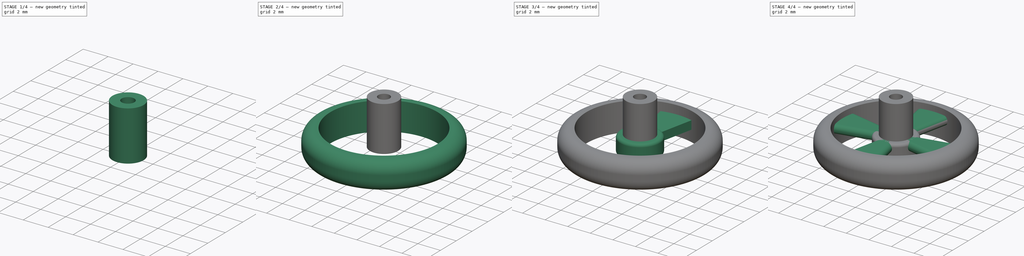
[diagram: build sequence overview — one tinted view per stage of 4, left to right]
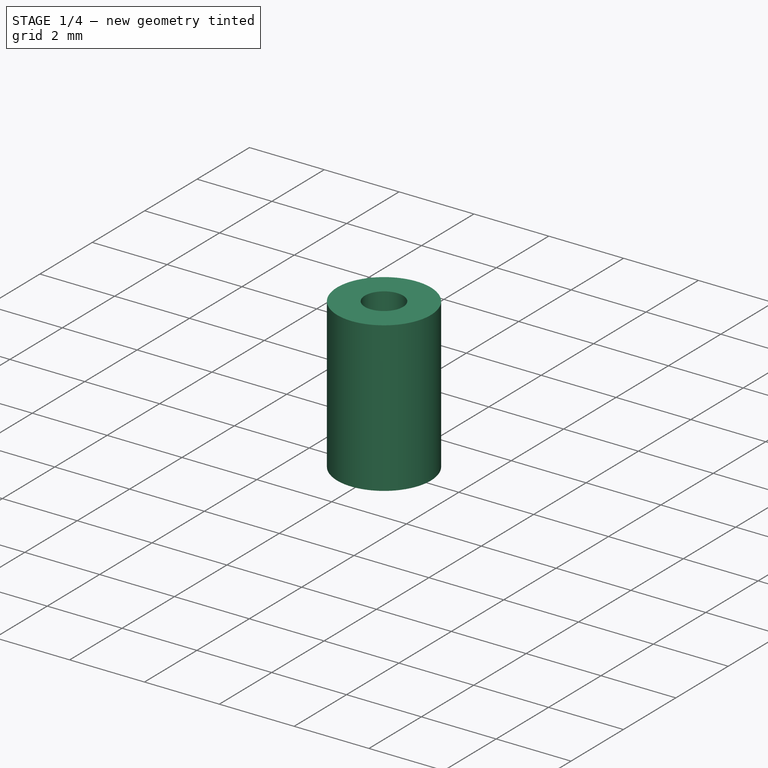
[diagram: stage 1 of 4 — iso view after this stage's code; geometry added in this stage tinted green]
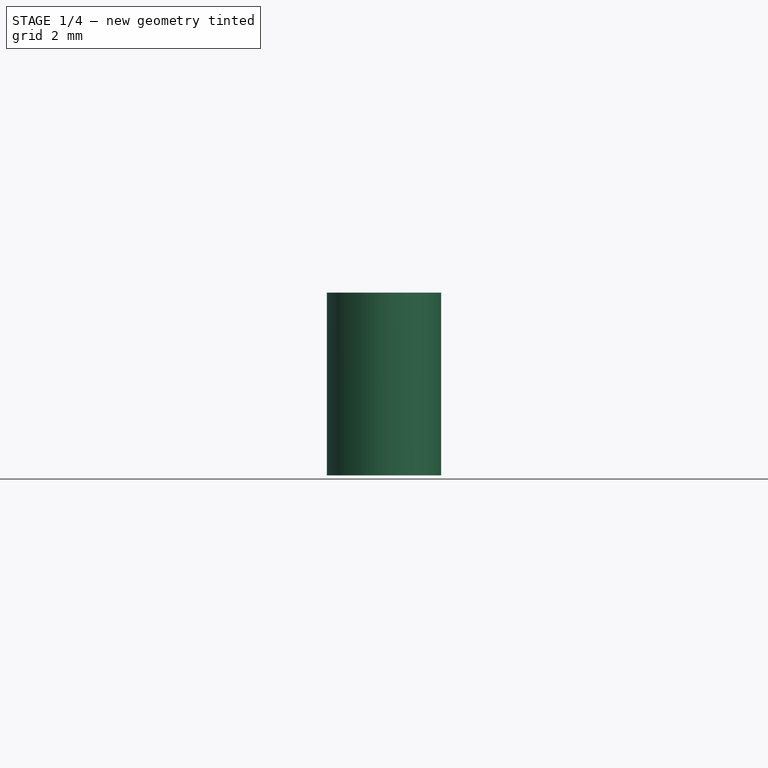
[diagram: stage 1 of 4 — front view after this stage's code; geometry added in this stage tinted green]
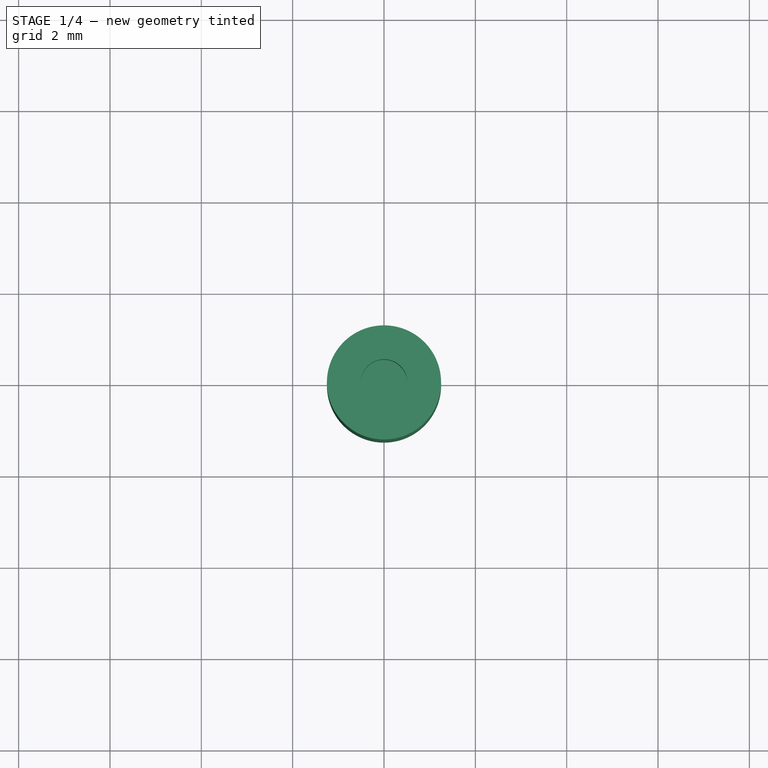
[diagram: stage 1 of 4 — top view after this stage's code; geometry added in this stage tinted green]
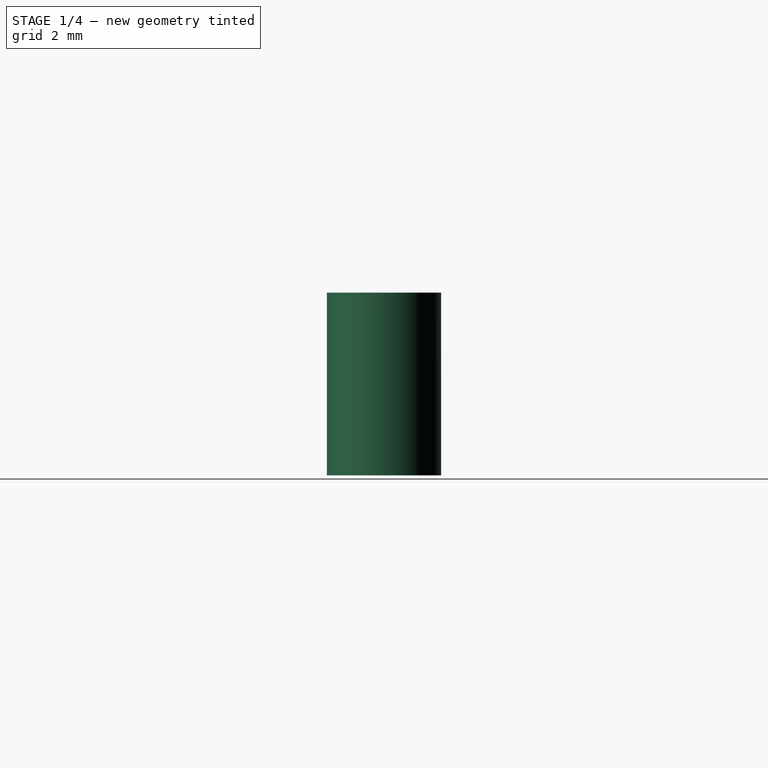
[diagram: stage 1 of 4 — right view after this stage's code; geometry added in this stage tinted green]
FCSTD DOCUMENT  (FreeCAD 0.19R24276 (Git))
Label: Wheel 2
License: All rights reserved
LicenseURL: http://en.wikipedia.org/wiki/All_rights_reserved
objects: Part::FeaturePython×4, Part::Fillet×2, Spreadsheet::Sheet×1, Sketcher::SketchObject×1, PartDesign::Pad×1, PartDesign::Fillet×1, PartDesign::Body×1, Part::Cylinder×1, Part::Cut×1
note: 13 computed .brp shape members not serialized (recipe doc carries the construction recipe); baked Part::Feature solids carry a one-line shape summary decoded from their .brp

FEATURE [Part::Cylinder] Cylinder
  Angle = 360
  AttacherType = Attacher::AttachEngine3D
  Height = 2
  Placement = pos=(0,0,1) rot=(0,0,1;0rad)
  Radius = 0.95
  expr: Radius = <<data>>.hub_outter_radius - 0.3mm
  expr: Height = <<data>>.hub_width - 2mm
FEATURE [Part::FeaturePython] Tube005  # WARN: FeaturePython — macro-defined, semantics opaque (R4)
  AttacherType = Attacher::AttachEngine3D
  Height = 4
  InnerRadius = 0.51
  OuterRadius = 1.25
  expr: Height = <<data>>.hub_width
  expr: InnerRadius = <<data>>.axle_hole_radius
  expr: OuterRadius = <<data>>.hub_outter_radius
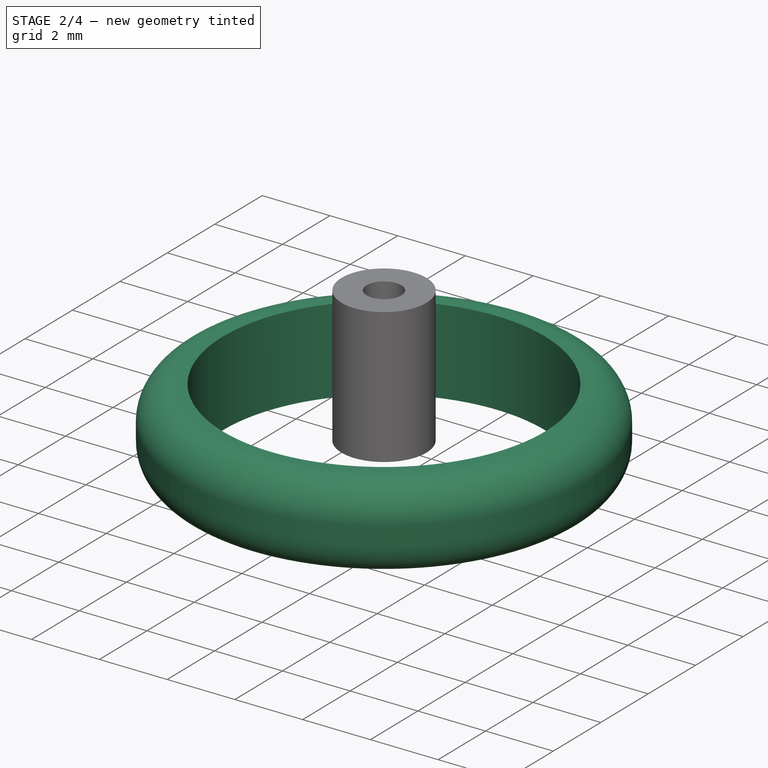
[diagram: stage 2 of 4 — iso view after this stage's code; geometry added in this stage tinted green]
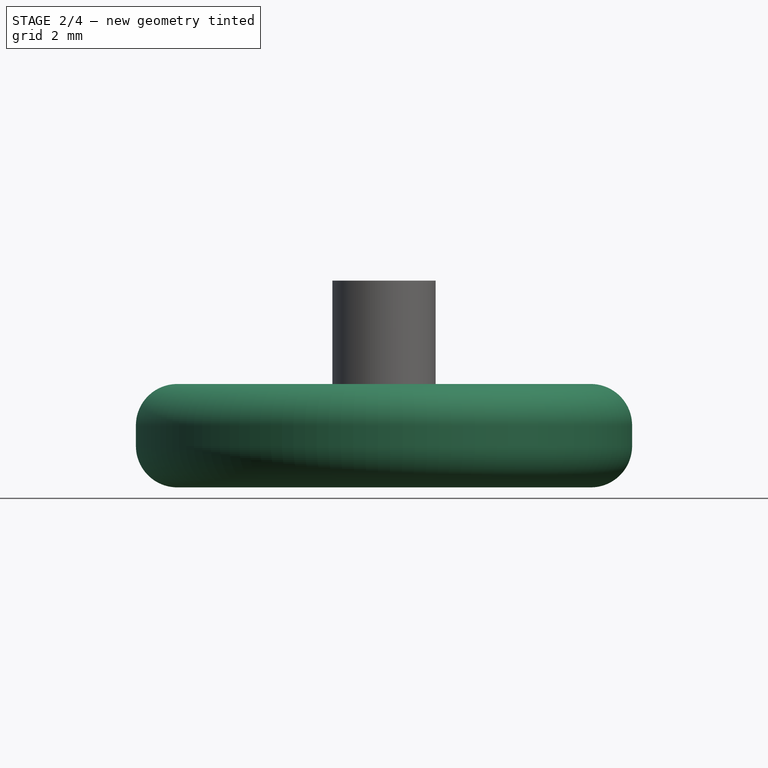
[diagram: stage 2 of 4 — front view after this stage's code; geometry added in this stage tinted green]
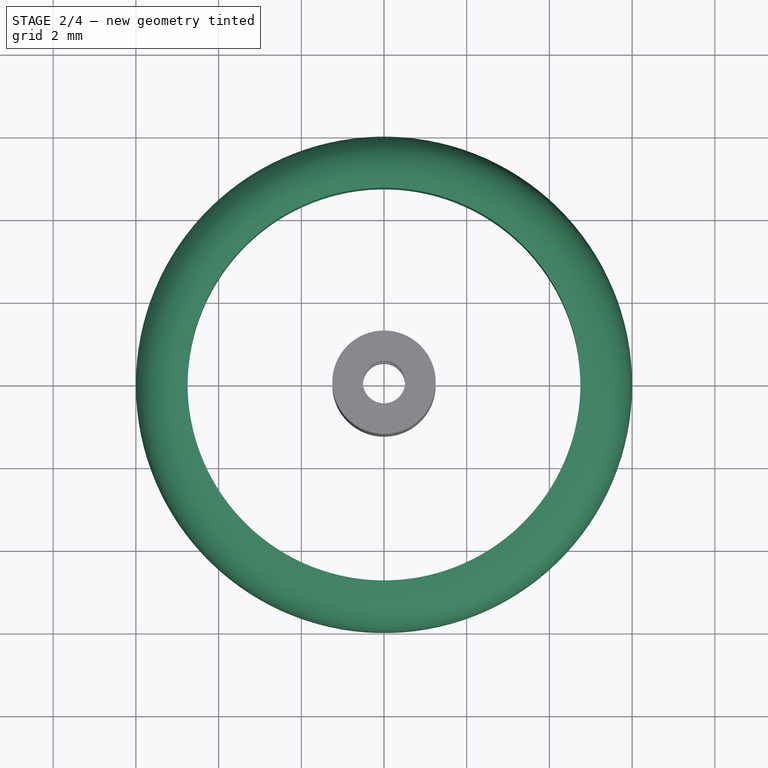
[diagram: stage 2 of 4 — top view after this stage's code; geometry added in this stage tinted green]
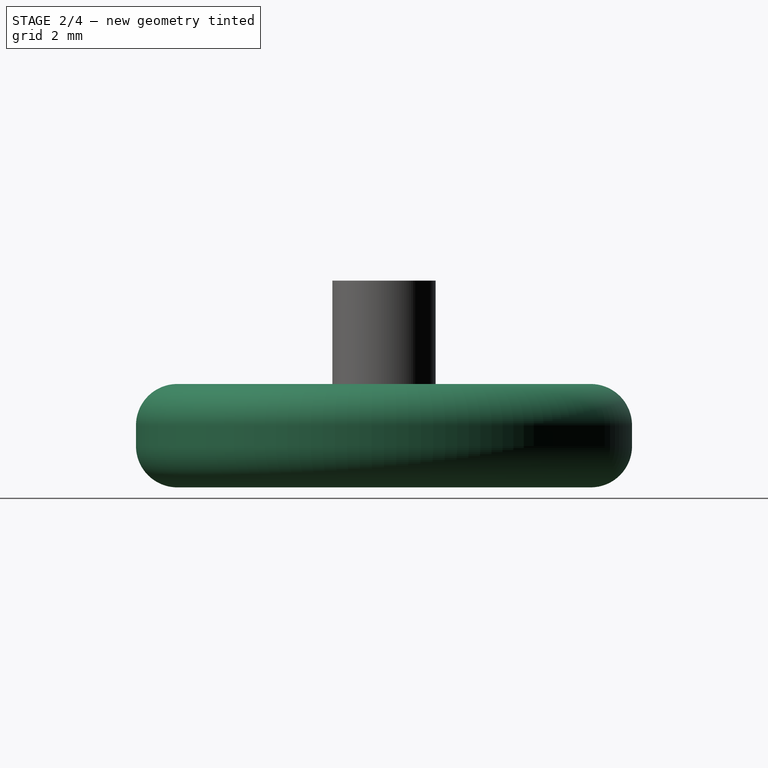
[diagram: stage 2 of 4 — right view after this stage's code; geometry added in this stage tinted green]
FEATURE [Part::FeaturePython] Tube  # WARN: FeaturePython — macro-defined, semantics opaque (R4)
  AttacherType = Attacher::AttachEngine3D
  Height = 2.5
  InnerRadius = 4.75
  OuterRadius = 6
  Placement = pos=(0,0,-1) rot=(0,0,1;0rad)
  expr: Height = <<data>>.wheel_width
  expr: InnerRadius = <<data>>.wheel_inner_radius
  expr: OuterRadius = <<data>>.wheel_outter_radius
FEATURE [Part::Fillet] Fillet005  label="Rim"
  Base = -> Tube
  Edges = 2 edges r=1: [Edge1,Edge3]
FEATURE [Part::Cut] Cut
  Base = -> Tube005
  Tool = -> Cylinder
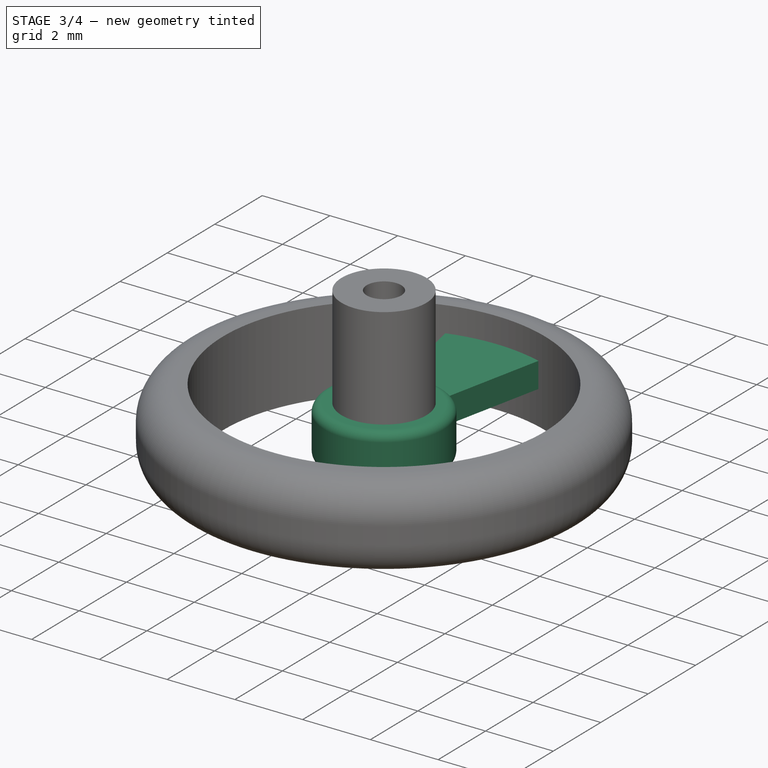
[diagram: stage 3 of 4 — iso view after this stage's code; geometry added in this stage tinted green]
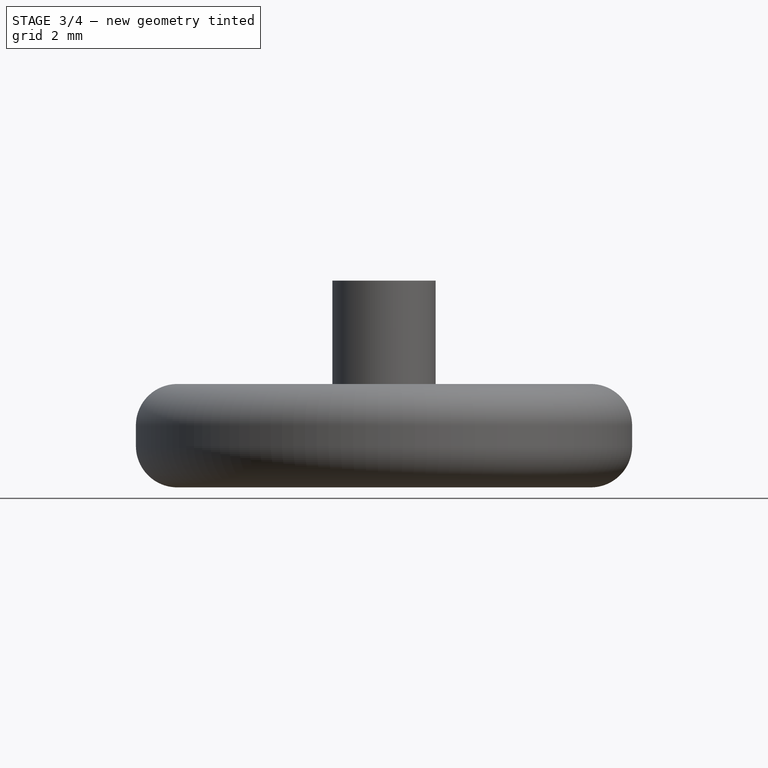
[diagram: stage 3 of 4 — front view after this stage's code; geometry added in this stage tinted green]
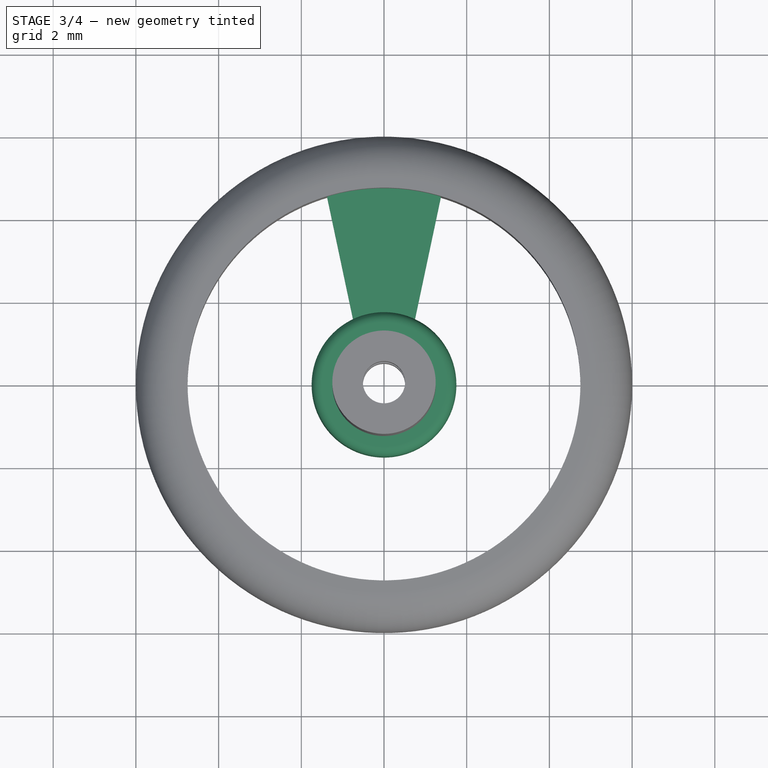
[diagram: stage 3 of 4 — top view after this stage's code; geometry added in this stage tinted green]
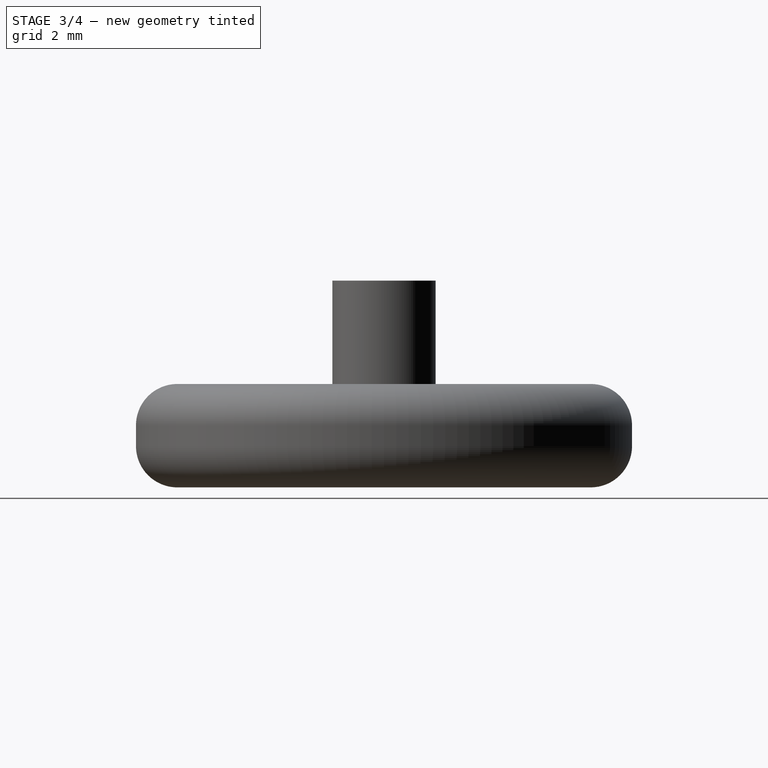
[diagram: stage 3 of 4 — right view after this stage's code; geometry added in this stage tinted green]
FEATURE [Spreadsheet::Sheet] Spreadsheet  label="data"
  cells = A1=axle_hole_radius; B1(axle_hole_radius)==0.51mm; E1==0.51mm; F1==0.51mm; A3=hub_outter_radius; B3(hub_outter_radius)==1.25mm; E3==1.25mm; F3==1.25mm; A5=hub_width; B5(hub_width)==4mm; E5==3mm; F5==4mm; A7=wheel_outter_radius; B7(wheel_outter_radius)==6mm; E7==5.5mm; F7==6mm; A8=wheel_inner_radius; B8(wheel_inner_radius)==4.75mm; D8=(wheel_outter_radius - wheel_inner_radius / 2) + wheel_inner_radius; E8==4.75mm; F8==4.75mm; A9=wheel_width; B9(wheel_width)==2.5mm; E9==2.5mm; F9==2.5mm; A10=spoke_width; B10(spoke_width)==0.75mm; E10==0.75mm; F10==0.75mm; A11=spoke_num; B11(spoke_num)=4; E11=3; F11=4; D12= volume mm^3; E12=89; F12=133; E13=try #2; F13=try #3; G13=audi spoke; E14==0.11g; F14==0.16g; G14==0.32g
FEATURE [Sketcher::SketchObject] Sketch
  FullyConstrained = true
  MapMode = 5
  Support = -> [XY_Plane]
  expr: Constraints[9] = (<<data>>.wheel_outter_radius - <<data>>.wheel_inner_radius) / 2 + <<data>>.wheel_inner_radius - 1.25mm
  expr: Constraints[7] = <<data>>.hub_outter_radius - 0.25mm
  sketch-geometry (4):
    g0: LineSegment StartX=1.5 StartY=5.125 StartZ=0 EndX=-1.5 EndY=5.125 EndZ=0
    g1: LineSegment StartX=-1.5 StartY=5.125 StartZ=0 EndX=-0.625 EndY=1 EndZ=0
    g2: LineSegment StartX=-0.625 StartY=1 StartZ=0 EndX=0.625 EndY=1 EndZ=0
    g3: LineSegment StartX=0.625 StartY=1 StartZ=0 EndX=1.5 EndY=5.125 EndZ=0
  constraints (10):
    c: Coincident(g0,g1)
    c: Coincident(g1,g2)
    c: Coincident(g2,g3)
    c: Coincident(g3,g0)
    c: Symmetric(g2,g1,g-2)
    c: DistanceX(g1,g2) = 1.25
    c: DistanceX(g0,g0) = 3
    c: DistanceY(g-1,g2) = 1
    c: Symmetric(g0,g0,g-2)
    c: DistanceY(g2,g0) = 4.125
FEATURE [PartDesign::Pad] Pad
  Direction = (1,1,1)
  Length = 0.75
  Length2 = 100
  Profile = -> Sketch
  Type = 0
  expr: Length = <<data>>.spoke_width
FEATURE [Part::FeaturePython] Tube003  # WARN: FeaturePython — macro-defined, semantics opaque (R4)
  AttacherType = Attacher::AttachEngine3D
  Height = 1.5
  InnerRadius = 1.25
  OuterRadius = 1.75
  Placement = pos=(0,0,-0.5) rot=(0,0,1;0rad)
  expr: OuterRadius = <<data>>.hub_outter_radius + 0.5mm
  expr: InnerRadius = <<data>>.hub_outter_radius
FEATURE [Part::Fillet] Fillet003  label="Rivet_dish"
  Base = -> Tube003
  Edges = 3 edges: [Edge1 r=0.25,Edge3 r=0.25,Edge5 r=0.24]
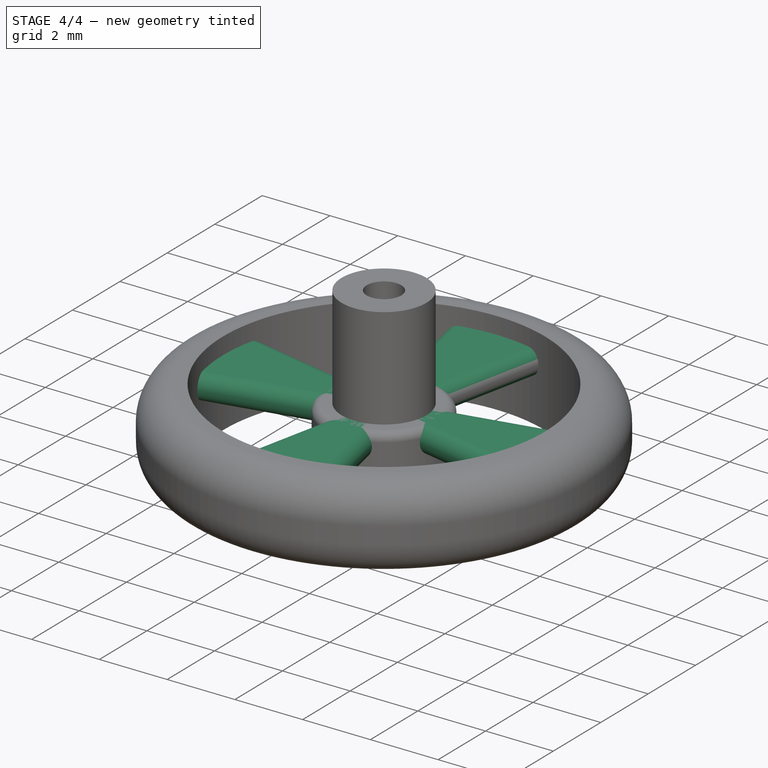
[diagram: stage 4 of 4 — iso view after this stage's code; geometry added in this stage tinted green]
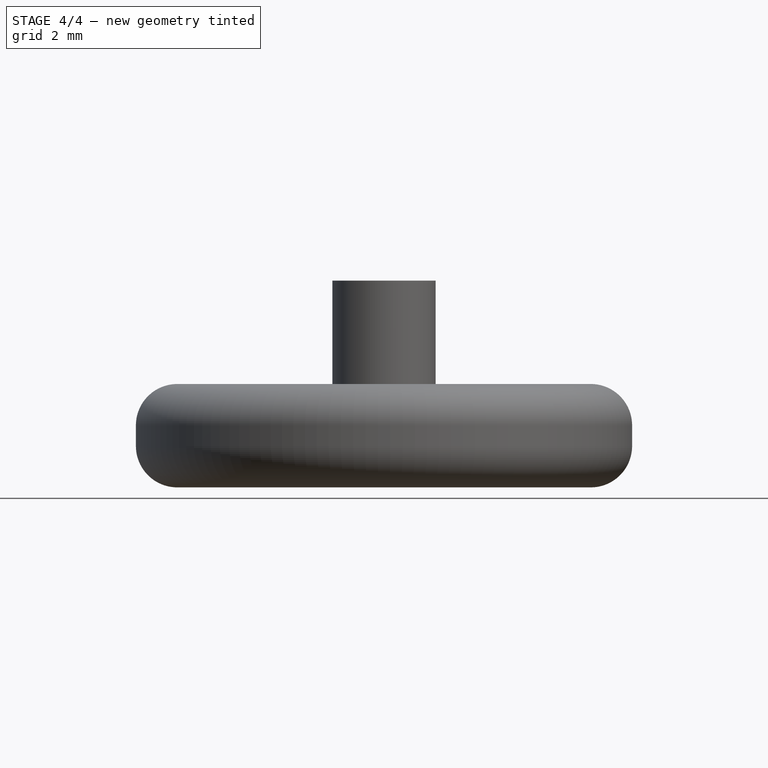
[diagram: stage 4 of 4 — front view after this stage's code; geometry added in this stage tinted green]
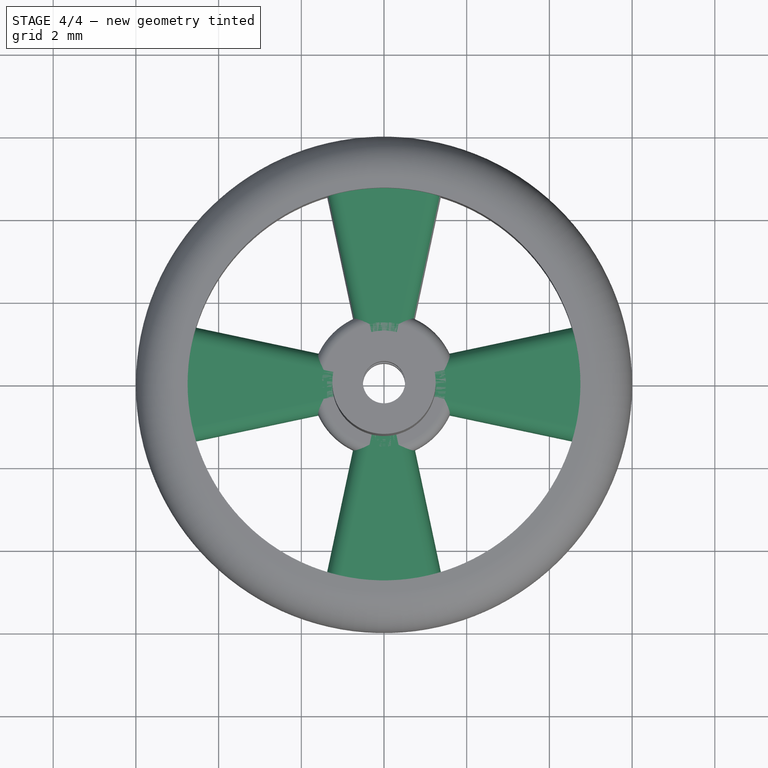
[diagram: stage 4 of 4 — top view after this stage's code; geometry added in this stage tinted green]
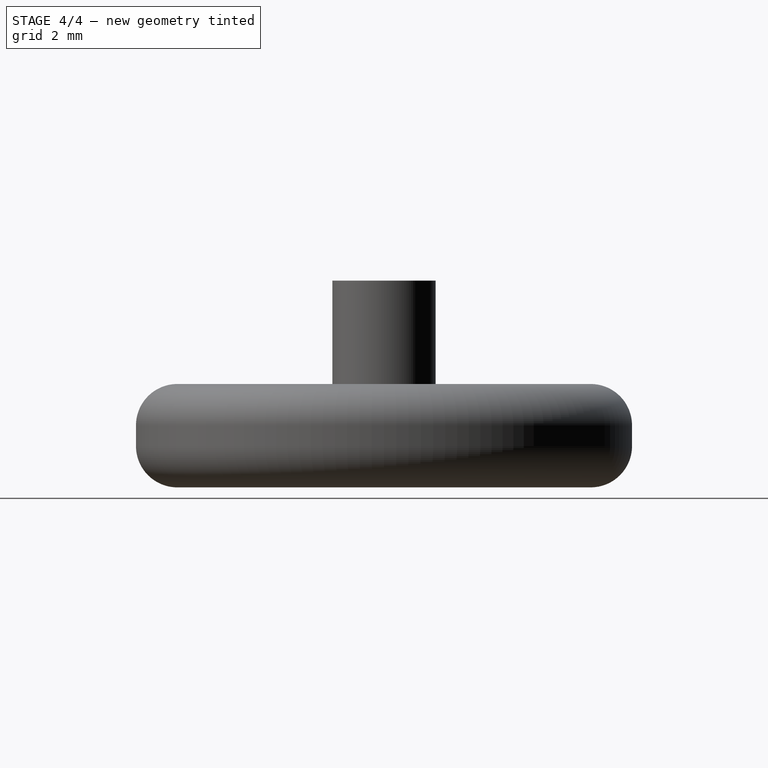
[diagram: stage 4 of 4 — right view after this stage's code; geometry added in this stage tinted green]
FEATURE [PartDesign::Fillet] Fillet002
  Base = -> Pad [Edge6,Edge7,Edge11,Edge12]
  BaseFeature = -> Pad
  Radius = 0.365
  SupportTransform = false
  expr: Radius = <<data>>.spoke_width / 2 - 0.01mm
FEATURE [PartDesign::Body] Body
  Group = -> [Sketch,Pad,Fillet002]
  Origin = -> Origin
  Placement = pos=(0,0,2.75) rot=(0,0,1;0rad)
  Tip = -> Fillet002
FEATURE [Part::FeaturePython] Array  label="Spokes"  # Draft array (typed FeaturePython)
  Angle = 360
  ArrayType = 1
  Axis = (0,0,1)
  Base = -> Fillet002
  Center = (0,0,0)
  Count = 4
  ExpandArray = false
  Fuse = false
  IntervalAxis = (0,0,0)
  IntervalX = (50,0,0)
  IntervalY = (0,50,0)
  IntervalZ = (0,0,50)
  NumberCircles = 3
  NumberPolar = 4
  NumberX = 2
  NumberY = 2
  NumberZ = 1
  Placement = pos=(0,0,0.25) rot=(0,0,1;0rad)
  PlacementList = 4 placements: [(0,0,0),(0,0,0),(0,0,0),(0,0,0)]
  RadialDistance = 50
  ScaleList = (4) [(1,1,1),(1,1,1),(1,1,1),(1,1,1)]
  Symmetry = 1
  TangentialDistance = 25
  expr: NumberPolar = <<data>>.spoke_num
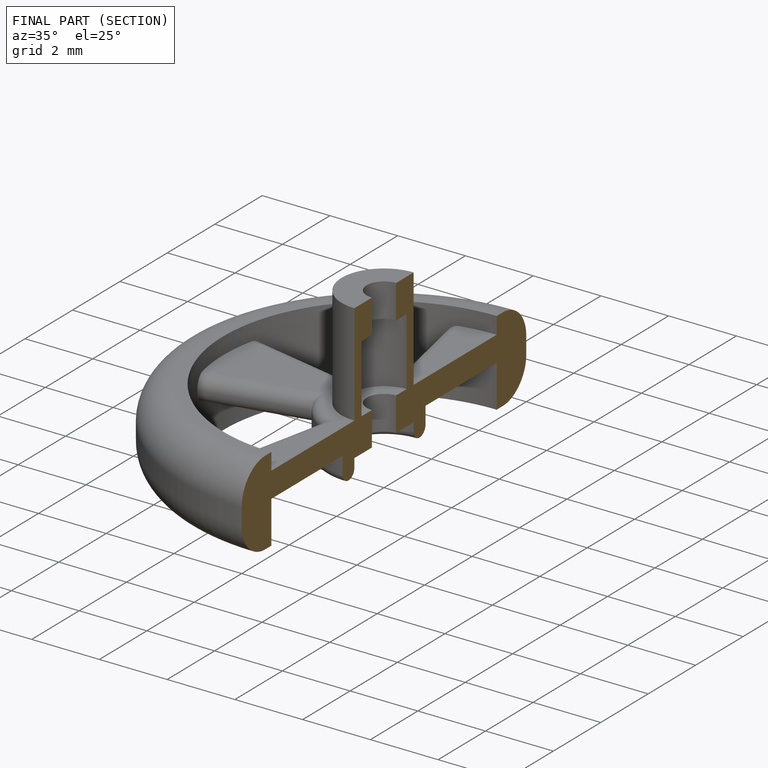
[diagram: finished part — half-section view (interior)]
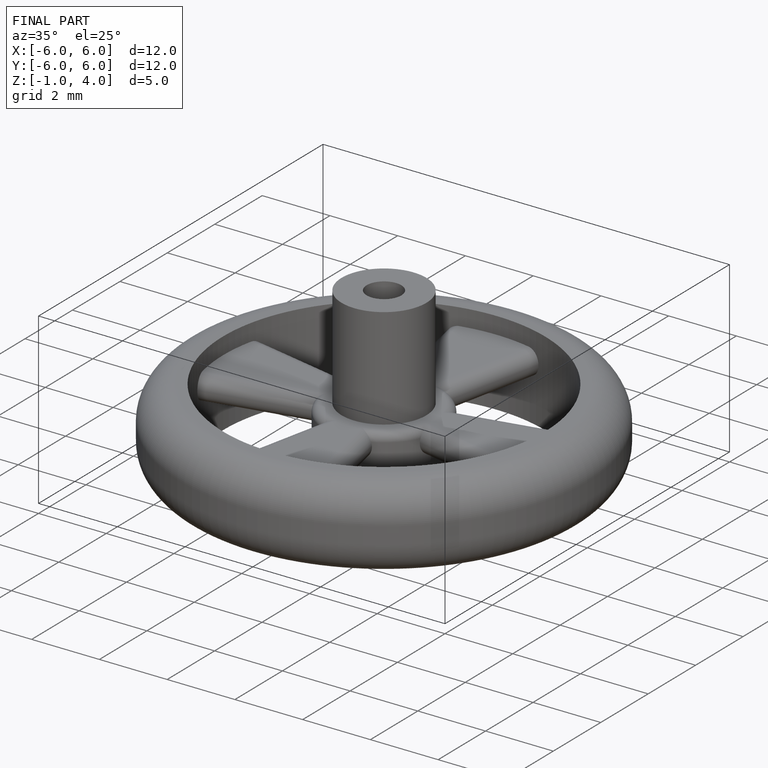
[diagram: finished part — iso view with bounding-box wireframe]
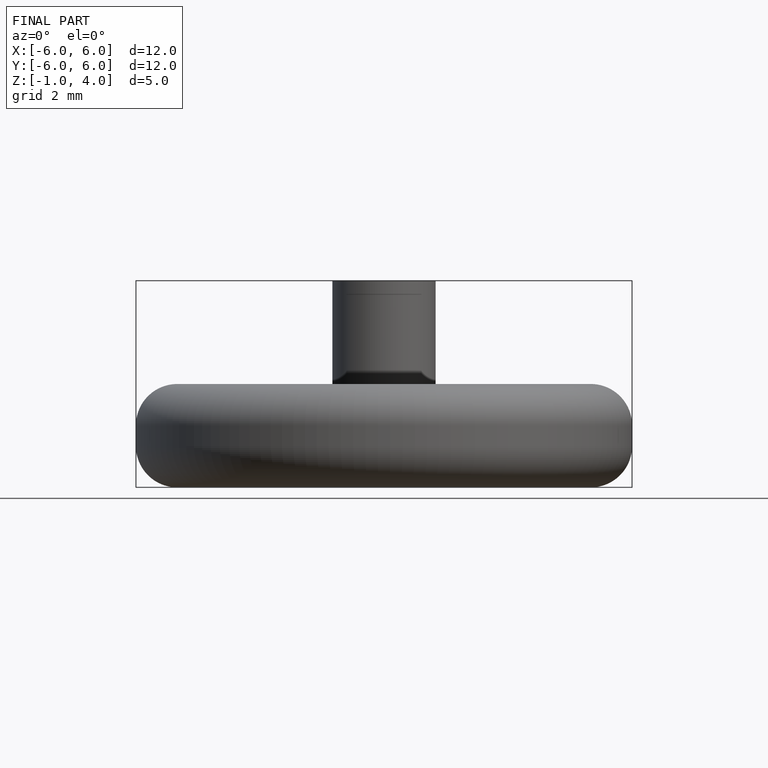
[diagram: finished part — front view with bounding-box wireframe]
